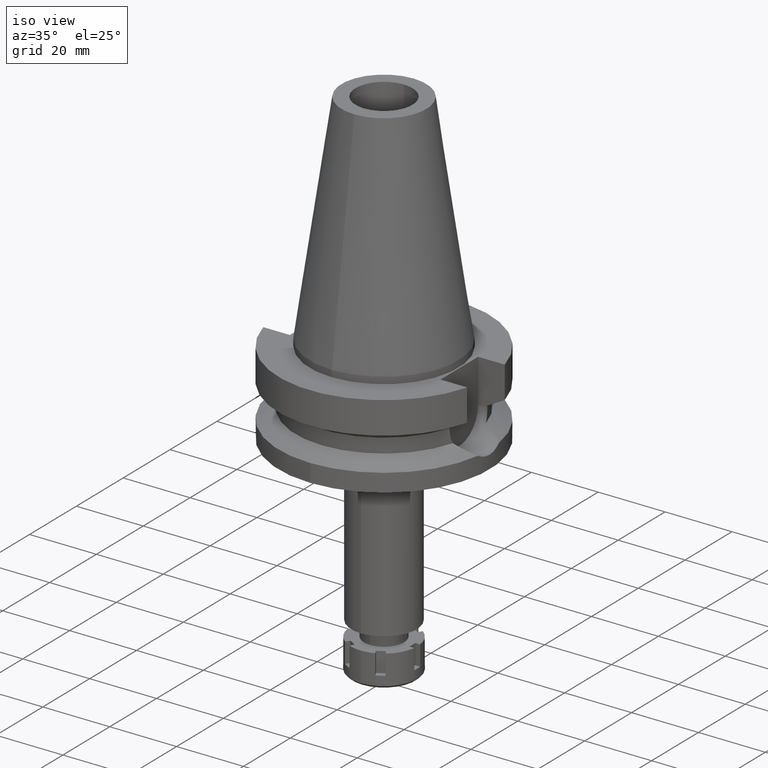
[diagram: clean part render]
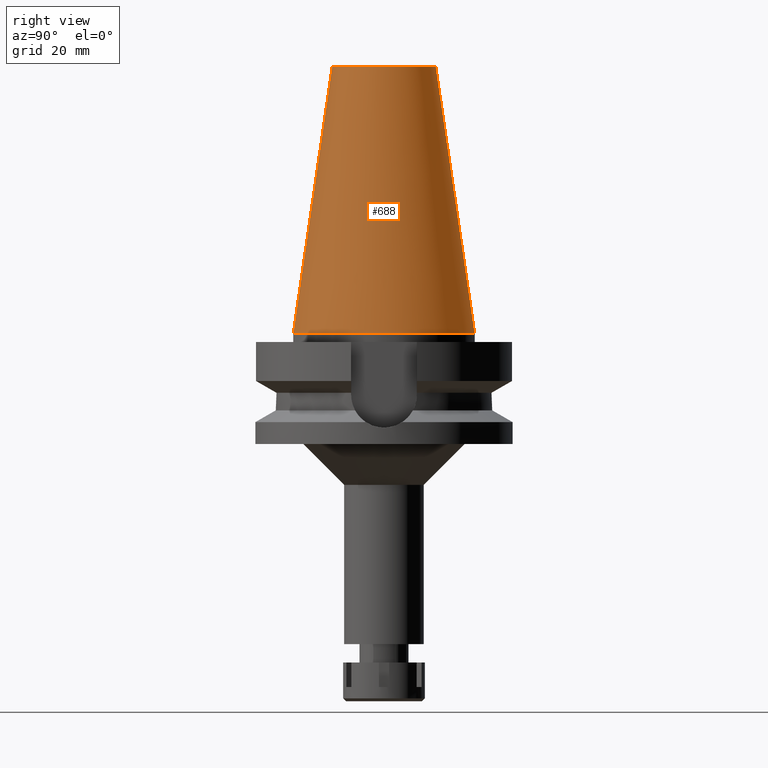
[diagram: tour spotlight — one face highlighted and labeled with its STEP entity id]
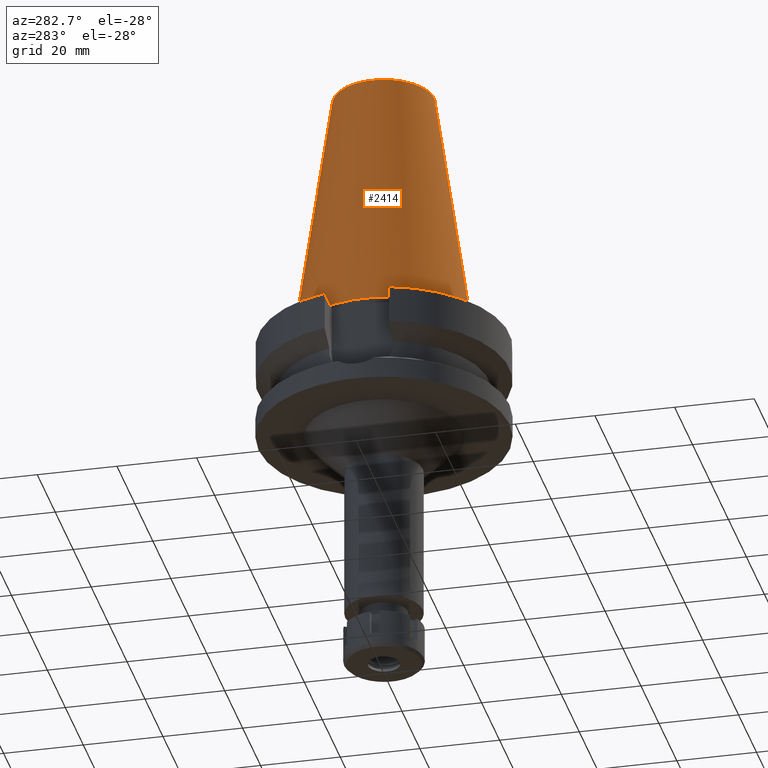
[diagram: tour spotlight — one face highlighted and labeled with its STEP entity id]
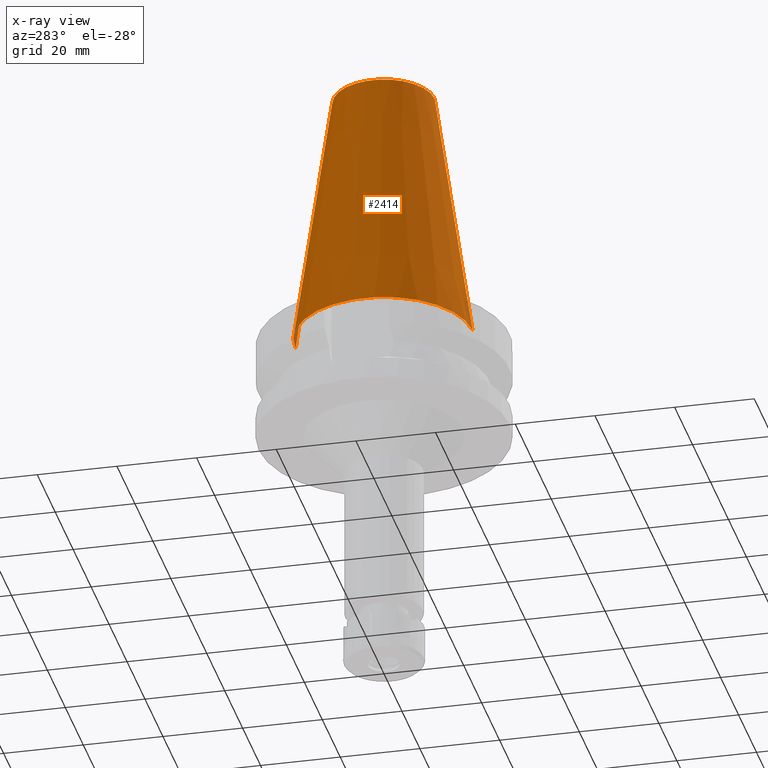
[diagram: x-ray of the same camera — body ghosted, this tour face saturated]
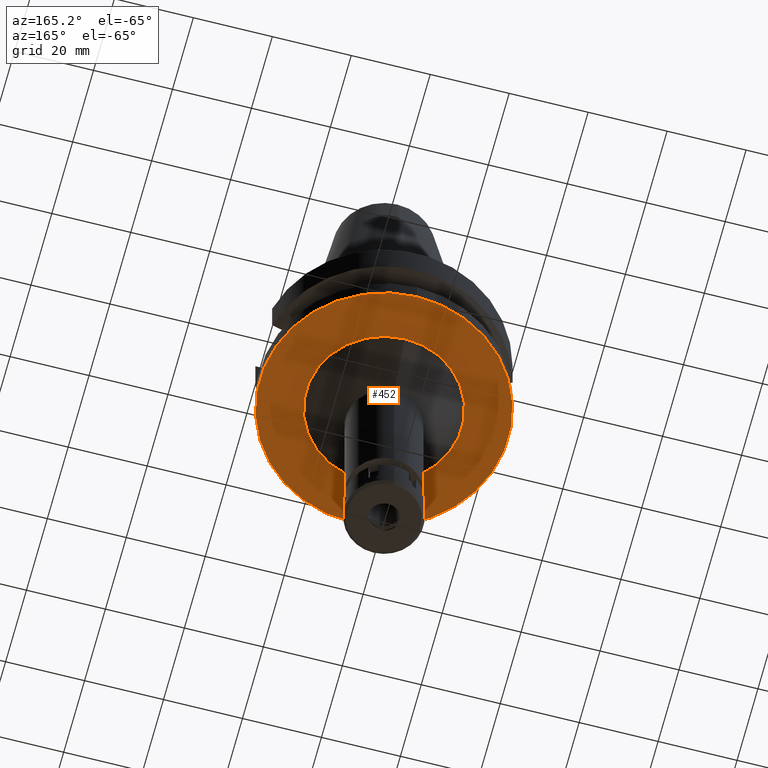
[diagram: tour spotlight — one face highlighted and labeled with its STEP entity id]
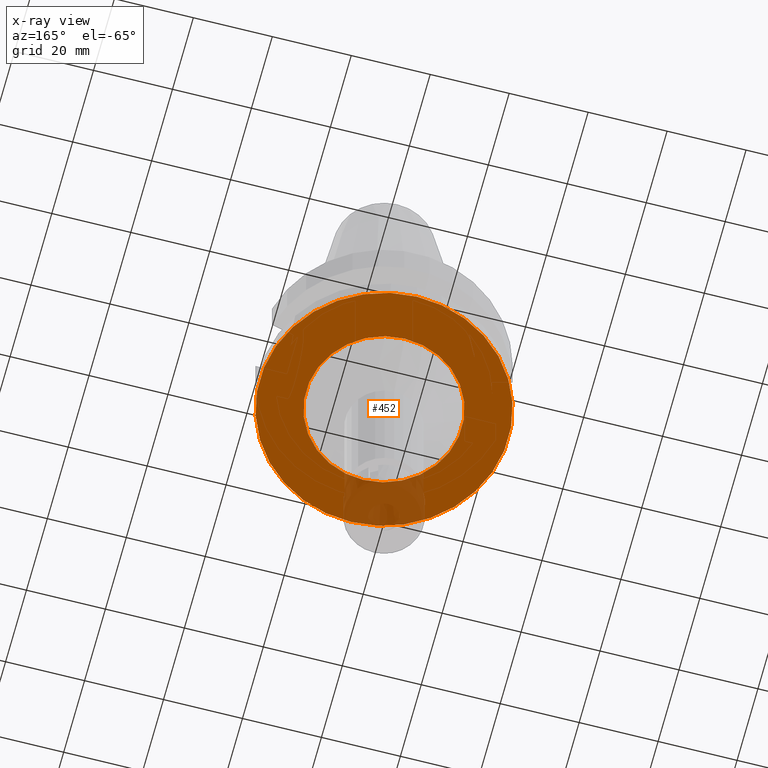
[diagram: x-ray of the same camera — body ghosted, this tour face saturated]
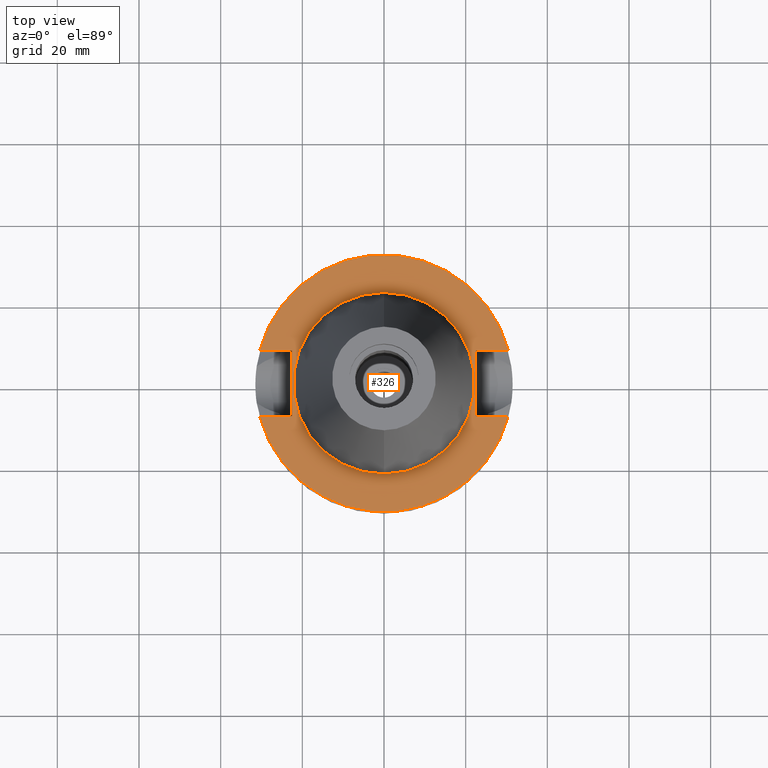
[diagram: tour spotlight — one face highlighted and labeled with its STEP entity id]
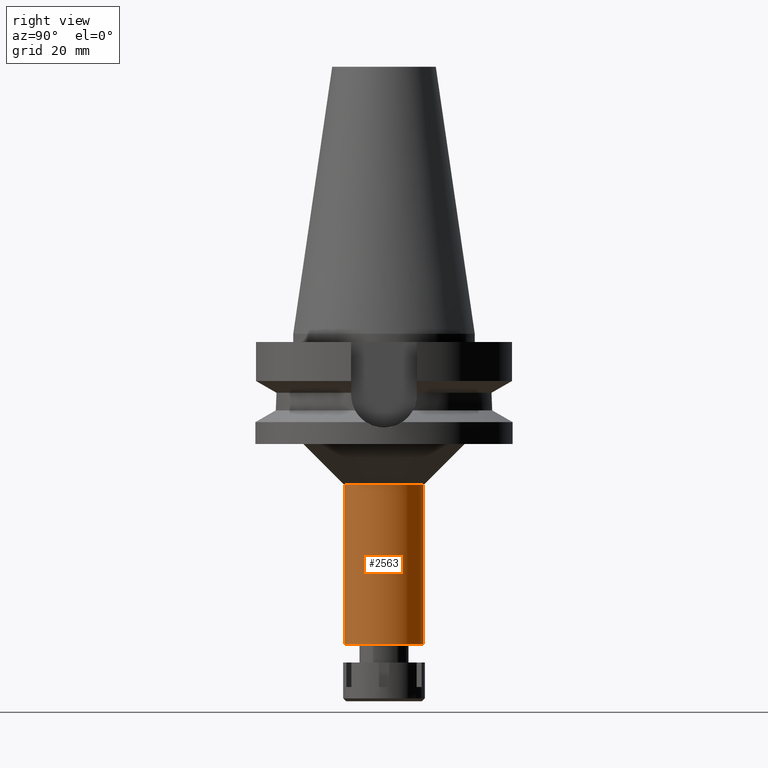
[diagram: tour spotlight — one face highlighted and labeled with its STEP entity id]
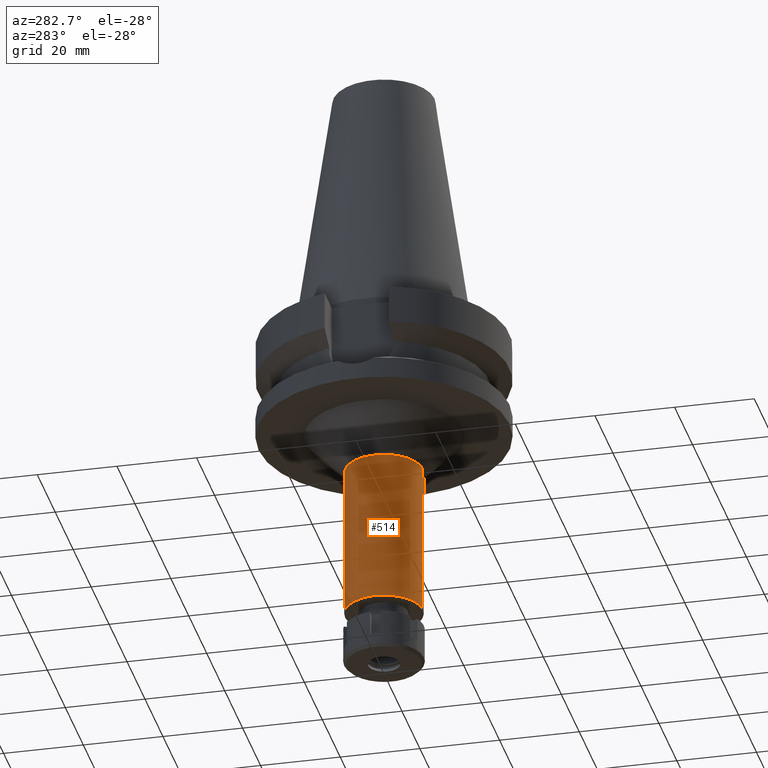
[diagram: tour spotlight — one face highlighted and labeled with its STEP entity id]
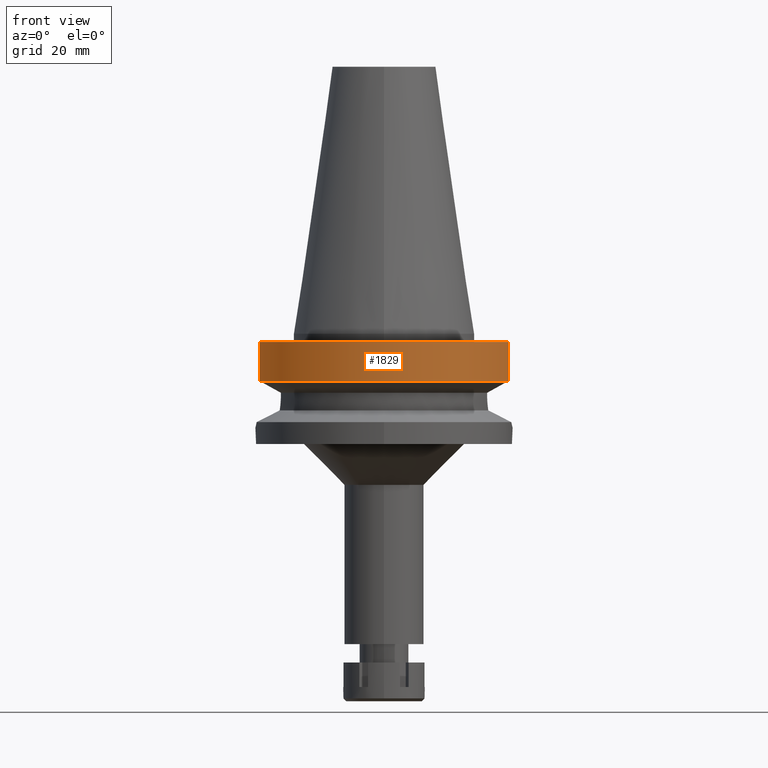
[diagram: tour spotlight — one face highlighted and labeled with its STEP entity id]
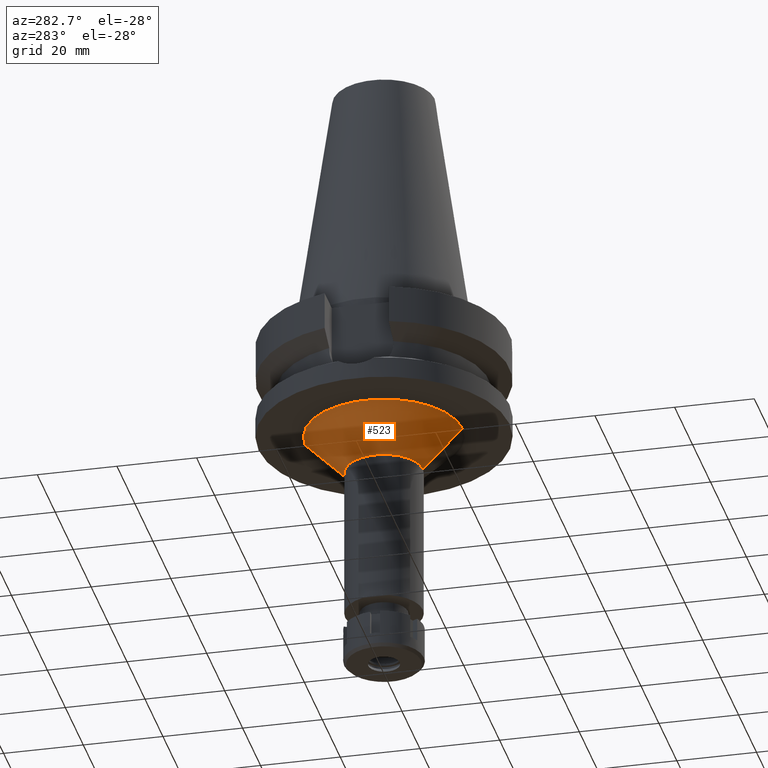
[diagram: tour spotlight — one face highlighted and labeled with its STEP entity id]
A machine part: a face-by-face anatomy tour. The part has 93 B-rep faces; the first image is the clean iso view, then the 8 largest visible faces are spotlighted one at a time (largest first), each with its STEP entity span.

Face 1 — right view, entity #688. In plain terms, the highlighted conical surface has half-angle 8.297 deg.
Definition (entity closure, byte-faithful):
#25 = CARTESIAN_POINT ( 'NONE',  ( 0.0000000000000000000, -22.22500000000000142, 2.842170943039999687E-14 ) ) ;
#68 = EDGE_CURVE ( 'NONE', #3295, #3209, #849, .T. ) ;
#174 = AXIS2_PLACEMENT_3D ( 'NONE', #1125, #2842, #3377 ) ;
#209 = LINE ( 'NONE', #1332, #979 ) ;
#239 = DIRECTION ( 'NONE',  ( 0.0000000000000000000, 1.000000000000000000, 0.0000000000000000000 ) ) ;
#414 = FACE_OUTER_BOUND ( 'NONE', #694, .T. ) ;
#688 = ADVANCED_FACE ( 'NONE', ( #414 ), #2694, .T. ) ;
#694 = EDGE_LOOP ( 'NONE', ( #954, #3004, #1729, #2101 ) ) ;
#723 = CARTESIAN_POINT ( 'NONE',  ( 0.0000000000000000000, 1.625106302469000024E-14, 65.40000000000000568 ) ) ;
#849 = CIRCLE ( 'NONE', #1273, 12.68766899429999917 ) ;
#922 = DIRECTION ( 'NONE',  ( 0.0000000000000000000, 0.0000000000000000000, -1.000000000000000000 ) ) ;
#954 = ORIENTED_EDGE ( 'NONE', *, *, #68, .T. ) ;
#979 = VECTOR ( 'NONE', #1576, 1000.000000000000114 ) ;
#1063 = DIRECTION ( 'NONE',  ( 0.0000000000000000000, -0.1443043893539925626, -0.9895333461855498891 ) ) ;
#1125 = CARTESIAN_POINT ( 'NONE',  ( 0.0000000000000000000, 1.625106302469000024E-14, 2.842170943039999687E-14 ) ) ;
#1273 = AXIS2_PLACEMENT_3D ( 'NONE', #723, #1634, #239 ) ;
#1332 = CARTESIAN_POINT ( 'NONE',  ( 0.0000000000000000000, 12.68766899429999917, 65.40000000000000568 ) ) ;
#1349 = LINE ( 'NONE', #3608, #2335 ) ;
#1366 = EDGE_CURVE ( 'NONE', #3295, #2921, #209, .T. ) ;
#1523 = CARTESIAN_POINT ( 'NONE',  ( 0.0000000000000000000, 12.68766899429999917, 65.40000000000000568 ) ) ;
#1576 = DIRECTION ( 'NONE',  ( 0.0000000000000000000, 0.1443043893539925626, -0.9895333461855498891 ) ) ;
#1634 = DIRECTION ( 'NONE',  ( 0.0000000000000000000, 0.0000000000000000000, -1.000000000000000000 ) ) ;
#1690 = CARTESIAN_POINT ( 'NONE',  ( 0.0000000000000000000, 22.22500000000000142, 7.105427357600999334E-14 ) ) ;
#1729 = ORIENTED_EDGE ( 'NONE', *, *, #2919, .F. ) ;
#1951 = EDGE_CURVE ( 'NONE', #3209, #2524, #1349, .T. ) ;
#2019 = CARTESIAN_POINT ( 'NONE',  ( 0.0000000000000000000, -12.68766899429999917, 65.40000000000000568 ) ) ;
#2053 = DIRECTION ( 'NONE',  ( 0.0000000000000000000, -1.000000000000000000, 0.0000000000000000000 ) ) ;
#2101 = ORIENTED_EDGE ( 'NONE', *, *, #1366, .F. ) ;
#2165 = AXIS2_PLACEMENT_3D ( 'NONE', #2895, #922, #2053 ) ;
#2335 = VECTOR ( 'NONE', #1063, 1000.000000000000114 ) ;
#2524 = VERTEX_POINT ( 'NONE', #25 ) ;
#2694 = CONICAL_SURFACE ( 'NONE', #2165, 17.45633449714999941, 0.1448099680379422438 ) ;
#2842 = DIRECTION ( 'NONE',  ( 0.0000000000000000000, 0.0000000000000000000, -1.000000000000000000 ) ) ;
#2895 = CARTESIAN_POINT ( 'NONE',  ( 0.0000000000000000000, 1.625106302469000024E-14, 32.70000000000000284 ) ) ;
#2919 = EDGE_CURVE ( 'NONE', #2921, #2524, #3305, .T. ) ;
#2921 = VERTEX_POINT ( 'NONE', #1690 ) ;
#3004 = ORIENTED_EDGE ( 'NONE', *, *, #1951, .T. ) ;
#3209 = VERTEX_POINT ( 'NONE', #2019 ) ;
#3295 = VERTEX_POINT ( 'NONE', #1523 ) ;
#3305 = CIRCLE ( 'NONE', #174, 22.22500000000000142 ) ;
#3377 = DIRECTION ( 'NONE',  ( 0.0000000000000000000, 1.000000000000000000, 0.0000000000000000000 ) ) ;
#3608 = CARTESIAN_POINT ( 'NONE',  ( 0.0000000000000000000, -12.68766899429999917, 65.40000000000000568 ) ) ;

Face 2 — auxiliary view, entity #2414. An x-ray twin of the same camera follows (body ghosted, this face saturated) — the face is partly hidden behind the body. In plain terms, the highlighted conical surface has half-angle 8.297 deg.
Definition (entity closure, byte-faithful):
#25 = CARTESIAN_POINT ( 'NONE',  ( 0.0000000000000000000, -22.22500000000000142, 2.842170943039999687E-14 ) ) ;
#100 = DIRECTION ( 'NONE',  ( 0.0000000000000000000, 0.0000000000000000000, -1.000000000000000000 ) ) ;
#191 = DIRECTION ( 'NONE',  ( 0.0000000000000000000, -1.000000000000000000, 0.0000000000000000000 ) ) ;
#209 = LINE ( 'NONE', #1332, #979 ) ;
#274 = ORIENTED_EDGE ( 'NONE', *, *, #1951, .F. ) ;
#567 = AXIS2_PLACEMENT_3D ( 'NONE', #1243, #100, #3215 ) ;
#681 = AXIS2_PLACEMENT_3D ( 'NONE', #1060, #2196, #3056 ) ;
#769 = DIRECTION ( 'NONE',  ( 0.0000000000000000000, 0.0000000000000000000, -1.000000000000000000 ) ) ;
#979 = VECTOR ( 'NONE', #1576, 1000.000000000000114 ) ;
#1060 = CARTESIAN_POINT ( 'NONE',  ( 0.0000000000000000000, 1.625106302469000024E-14, 2.842170943039999687E-14 ) ) ;
#1063 = DIRECTION ( 'NONE',  ( 0.0000000000000000000, -0.1443043893539925626, -0.9895333461855498891 ) ) ;
#1090 = EDGE_CURVE ( 'NONE', #2524, #2921, #3582, .T. ) ;
#1221 = AXIS2_PLACEMENT_3D ( 'NONE', #3317, #769, #191 ) ;
#1238 = EDGE_CURVE ( 'NONE', #3209, #3295, #3638, .T. ) ;
#1243 = CARTESIAN_POINT ( 'NONE',  ( 0.0000000000000000000, 1.625106302469000024E-14, 65.40000000000000568 ) ) ;
#1332 = CARTESIAN_POINT ( 'NONE',  ( 0.0000000000000000000, 12.68766899429999917, 65.40000000000000568 ) ) ;
#1349 = LINE ( 'NONE', #3608, #2335 ) ;
#1366 = EDGE_CURVE ( 'NONE', #3295, #2921, #209, .T. ) ;
#1469 = ORIENTED_EDGE ( 'NONE', *, *, #1366, .T. ) ;
#1523 = CARTESIAN_POINT ( 'NONE',  ( 0.0000000000000000000, 12.68766899429999917, 65.40000000000000568 ) ) ;
#1576 = DIRECTION ( 'NONE',  ( 0.0000000000000000000, 0.1443043893539925626, -0.9895333461855498891 ) ) ;
#1690 = CARTESIAN_POINT ( 'NONE',  ( 0.0000000000000000000, 22.22500000000000142, 7.105427357600999334E-14 ) ) ;
#1951 = EDGE_CURVE ( 'NONE', #3209, #2524, #1349, .T. ) ;
#2019 = CARTESIAN_POINT ( 'NONE',  ( 0.0000000000000000000, -12.68766899429999917, 65.40000000000000568 ) ) ;
#2164 = FACE_OUTER_BOUND ( 'NONE', #3262, .T. ) ;
#2196 = DIRECTION ( 'NONE',  ( 0.0000000000000000000, 0.0000000000000000000, -1.000000000000000000 ) ) ;
#2335 = VECTOR ( 'NONE', #1063, 1000.000000000000114 ) ;
#2339 = CONICAL_SURFACE ( 'NONE', #1221, 17.45633449714999941, 0.1448099680379422438 ) ;
#2357 = ORIENTED_EDGE ( 'NONE', *, *, #1238, .T. ) ;
#2414 = ADVANCED_FACE ( 'NONE', ( #2164 ), #2339, .T. ) ;
#2524 = VERTEX_POINT ( 'NONE', #25 ) ;
#2921 = VERTEX_POINT ( 'NONE', #1690 ) ;
#3056 = DIRECTION ( 'NONE',  ( 0.0000000000000000000, -1.000000000000000000, 0.0000000000000000000 ) ) ;
#3209 = VERTEX_POINT ( 'NONE', #2019 ) ;
#3215 = DIRECTION ( 'NONE',  ( 0.0000000000000000000, -1.000000000000000000, 0.0000000000000000000 ) ) ;
#3262 = EDGE_LOOP ( 'NONE', ( #3460, #274, #2357, #1469 ) ) ;
#3295 = VERTEX_POINT ( 'NONE', #1523 ) ;
#3317 = CARTESIAN_POINT ( 'NONE',  ( 0.0000000000000000000, 1.625106302469000024E-14, 32.70000000000000284 ) ) ;
#3460 = ORIENTED_EDGE ( 'NONE', *, *, #1090, .F. ) ;
#3582 = CIRCLE ( 'NONE', #681, 22.22500000000000142 ) ;
#3608 = CARTESIAN_POINT ( 'NONE',  ( 0.0000000000000000000, -12.68766899429999917, 65.40000000000000568 ) ) ;
#3638 = CIRCLE ( 'NONE', #567, 12.68766899429999917 ) ;

Face 3 — auxiliary view, entity #452. An x-ray twin of the same camera follows (body ghosted, this face saturated) — the face is partly hidden behind the body. In plain terms, the highlighted planar face has unit normal (0, 0, -1).
Definition (entity closure, byte-faithful):
#126 = CARTESIAN_POINT ( 'NONE',  ( 0.0000000000000000000, 0.0000000000000000000, -27.00000000000000000 ) ) ;
#169 = ORIENTED_EDGE ( 'NONE', *, *, #3291, .F. ) ;
#204 = DIRECTION ( 'NONE',  ( 0.0000000000000000000, 0.0000000000000000000, 1.000000000000000000 ) ) ;
#217 = ORIENTED_EDGE ( 'NONE', *, *, #2027, .F. ) ;
#235 = AXIS2_PLACEMENT_3D ( 'NONE', #126, #3509, #1822 ) ;
#306 = VERTEX_POINT ( 'NONE', #3228 ) ;
#450 = AXIS2_PLACEMENT_3D ( 'NONE', #1886, #2150, #1012 ) ;
#452 = ADVANCED_FACE ( 'NONE', ( #1834, #3554 ), #3300, .T. ) ;
#544 = CARTESIAN_POINT ( 'NONE',  ( 0.0000000000000000000, -19.75000000000000000, -27.00000000000000000 ) ) ;
#726 = VERTEX_POINT ( 'NONE', #2112 ) ;
#747 = DIRECTION ( 'NONE',  ( 0.0000000000000000000, 1.000000000000000000, 0.0000000000000000000 ) ) ;
#872 = CIRCLE ( 'NONE', #235, 19.75000000000000000 ) ;
#883 = CARTESIAN_POINT ( 'NONE',  ( 0.0000000000000000000, 0.0000000000000000000, -27.00000000000000000 ) ) ;
#1012 = DIRECTION ( 'NONE',  ( 0.0000000000000000000, -1.000000000000000000, 0.0000000000000000000 ) ) ;
#1119 = DIRECTION ( 'NONE',  ( 0.0000000000000000000, 0.0000000000000000000, -1.000000000000000000 ) ) ;
#1493 = VERTEX_POINT ( 'NONE', #544 ) ;
#1607 = EDGE_CURVE ( 'NONE', #306, #726, #1814, .T. ) ;
#1814 = CIRCLE ( 'NONE', #2221, 31.50000000000000000 ) ;
#1822 = DIRECTION ( 'NONE',  ( 0.0000000000000000000, -1.000000000000000000, 0.0000000000000000000 ) ) ;
#1834 = FACE_OUTER_BOUND ( 'NONE', #2162, .T. ) ;
#1886 = CARTESIAN_POINT ( 'NONE',  ( 0.0000000000000000000, 0.0000000000000000000, -27.00000000000000000 ) ) ;
#2014 = CARTESIAN_POINT ( 'NONE',  ( 0.0000000000000000000, 2.117659245085999800E-14, -27.00000000000000000 ) ) ;
#2027 = EDGE_CURVE ( 'NONE', #3551, #1493, #2706, .T. ) ;
#2048 = AXIS2_PLACEMENT_3D ( 'NONE', #3553, #204, #747 ) ;
#2112 = CARTESIAN_POINT ( 'NONE',  ( 0.0000000000000000000, 31.50000000000000000, -27.00000000000000000 ) ) ;
#2150 = DIRECTION ( 'NONE',  ( 0.0000000000000000000, 0.0000000000000000000, -1.000000000000000000 ) ) ;
#2162 = EDGE_LOOP ( 'NONE', ( #2254, #2559 ) ) ;
#2221 = AXIS2_PLACEMENT_3D ( 'NONE', #2014, #3153, #2871 ) ;
#2254 = ORIENTED_EDGE ( 'NONE', *, *, #2388, .F. ) ;
#2388 = EDGE_CURVE ( 'NONE', #726, #306, #3068, .T. ) ;
#2550 = DIRECTION ( 'NONE',  ( 0.0000000000000000000, 1.000000000000000000, 0.0000000000000000000 ) ) ;
#2558 = EDGE_LOOP ( 'NONE', ( #217, #169 ) ) ;
#2559 = ORIENTED_EDGE ( 'NONE', *, *, #1607, .F. ) ;
#2636 = CARTESIAN_POINT ( 'NONE',  ( 0.0000000000000000000, 19.75000000000000000, -27.00000000000000000 ) ) ;
#2706 = CIRCLE ( 'NONE', #2885, 19.75000000000000000 ) ;
#2871 = DIRECTION ( 'NONE',  ( 0.0000000000000000000, -1.000000000000000000, 0.0000000000000000000 ) ) ;
#2885 = AXIS2_PLACEMENT_3D ( 'NONE', #883, #1119, #2550 ) ;
#3068 = CIRCLE ( 'NONE', #2048, 31.50000000000000000 ) ;
#3153 = DIRECTION ( 'NONE',  ( 0.0000000000000000000, 0.0000000000000000000, 1.000000000000000000 ) ) ;
#3228 = CARTESIAN_POINT ( 'NONE',  ( 0.0000000000000000000, -31.50000000000000000, -27.00000000000000000 ) ) ;
#3291 = EDGE_CURVE ( 'NONE', #1493, #3551, #872, .T. ) ;
#3300 = PLANE ( 'NONE',  #450 ) ;
#3509 = DIRECTION ( 'NONE',  ( 0.0000000000000000000, 0.0000000000000000000, -1.000000000000000000 ) ) ;
#3551 = VERTEX_POINT ( 'NONE', #2636 ) ;
#3553 = CARTESIAN_POINT ( 'NONE',  ( 0.0000000000000000000, 2.117659245085999800E-14, -27.00000000000000000 ) ) ;
#3554 = FACE_BOUND ( 'NONE', #2558, .T. ) ;

Face 4 — top view, entity #326. In plain terms, the highlighted planar face has unit normal (0, 0, -1).
Definition (entity closure, byte-faithful):
#13 = DIRECTION ( 'NONE',  ( 0.0000000000000000000, 0.0000000000000000000, -1.000000000000000000 ) ) ;
#79 = EDGE_CURVE ( 'NONE', #484, #1215, #3547, .T. ) ;
#103 = CIRCLE ( 'NONE', #3117, 31.50000000000000000 ) ;
#148 = VERTEX_POINT ( 'NONE', #3426 ) ;
#275 = CARTESIAN_POINT ( 'NONE',  ( 0.0000000000000000000, 2.117659245085999800E-14, -2.000000000000000000 ) ) ;
#307 = CARTESIAN_POINT ( 'NONE',  ( 30.45402272279000044, 8.050000000000000711, -2.000000000000000000 ) ) ;
#322 = VERTEX_POINT ( 'NONE', #1099 ) ;
#326 = ADVANCED_FACE ( 'NONE', ( #1026, #2234 ), #1663, .F. ) ;
#336 = ORIENTED_EDGE ( 'NONE', *, *, #3614, .F. ) ;
#382 = CARTESIAN_POINT ( 'NONE',  ( 0.0000000000000000000, 2.117659245085999800E-14, -2.000000000000000000 ) ) ;
#426 = ORIENTED_EDGE ( 'NONE', *, *, #1847, .T. ) ;
#451 = ORIENTED_EDGE ( 'NONE', *, *, #1134, .F. ) ;
#457 = EDGE_CURVE ( 'NONE', #1215, #322, #487, .T. ) ;
#484 = VERTEX_POINT ( 'NONE', #2976 ) ;
#485 = ORIENTED_EDGE ( 'NONE', *, *, #79, .F. ) ;
#487 = LINE ( 'NONE', #2722, #2998 ) ;
#561 = AXIS2_PLACEMENT_3D ( 'NONE', #1610, #826, #1626 ) ;
#731 = LINE ( 'NONE', #3269, #1635 ) ;
#745 = EDGE_LOOP ( 'NONE', ( #2850, #2088 ) ) ;
#759 = LINE ( 'NONE', #1892, #1753 ) ;
#826 = DIRECTION ( 'NONE',  ( 0.0000000000000000000, 0.0000000000000000000, -1.000000000000000000 ) ) ;
#848 = DIRECTION ( 'NONE',  ( -1.000000000000000000, 3.550916904668000126E-14, 0.0000000000000000000 ) ) ;
#879 = CARTESIAN_POINT ( 'NONE',  ( 0.0000000000000000000, 2.117659245085999800E-14, -2.000000000000000000 ) ) ;
#890 = DIRECTION ( 'NONE',  ( 0.0000000000000000000, 0.0000000000000000000, 1.000000000000000000 ) ) ;
#905 = ORIENTED_EDGE ( 'NONE', *, *, #457, .F. ) ;
#937 = VECTOR ( 'NONE', #1006, 1000.000000000000000 ) ;
#972 = VECTOR ( 'NONE', #3276, 1000.000000000000000 ) ;
#990 = CARTESIAN_POINT ( 'NONE',  ( 22.50000000000000000, 8.050000000000000711, -2.000000000000000000 ) ) ;
#996 = ORIENTED_EDGE ( 'NONE', *, *, #1301, .F. ) ;
#1006 = DIRECTION ( 'NONE',  ( 0.0000000000000000000, -1.000000000000000000, 0.0000000000000000000 ) ) ;
#1026 = FACE_OUTER_BOUND ( 'NONE', #1168, .T. ) ;
#1099 = CARTESIAN_POINT ( 'NONE',  ( -30.45402272279000044, 8.050000000000000711, -2.000000000000000000 ) ) ;
#1110 = LINE ( 'NONE', #1929, #1343 ) ;
#1134 = EDGE_CURVE ( 'NONE', #322, #1173, #1812, .T. ) ;
#1168 = EDGE_LOOP ( 'NONE', ( #1562, #2569, #996, #336, #426, #451, #905, #485 ) ) ;
#1173 = VERTEX_POINT ( 'NONE', #307 ) ;
#1179 = CARTESIAN_POINT ( 'NONE',  ( 0.0000000000000000000, 2.117659245085999800E-14, -2.000000000000000000 ) ) ;
#1215 = VERTEX_POINT ( 'NONE', #2580 ) ;
#1267 = LINE ( 'NONE', #990, #937 ) ;
#1301 = EDGE_CURVE ( 'NONE', #3451, #148, #759, .T. ) ;
#1323 = VERTEX_POINT ( 'NONE', #3035 ) ;
#1343 = VECTOR ( 'NONE', #848, 1000.000000000000000 ) ;
#1390 = AXIS2_PLACEMENT_3D ( 'NONE', #1179, #1780, #3485 ) ;
#1396 = DIRECTION ( 'NONE',  ( 0.0000000000000000000, -1.000000000000000000, 0.0000000000000000000 ) ) ;
#1400 = VERTEX_POINT ( 'NONE', #2189 ) ;
#1495 = VERTEX_POINT ( 'NONE', #3138 ) ;
#1560 = DIRECTION ( 'NONE',  ( 0.0000000000000000000, 0.0000000000000000000, -1.000000000000000000 ) ) ;
#1562 = ORIENTED_EDGE ( 'NONE', *, *, #2916, .T. ) ;
#1610 = CARTESIAN_POINT ( 'NONE',  ( 0.0000000000000000000, 1.200153863163999924E-14, -2.000000000000000000 ) ) ;
#1623 = EDGE_CURVE ( 'NONE', #2948, #1323, #2272, .T. ) ;
#1626 = DIRECTION ( 'NONE',  ( 0.0000000000000000000, -1.000000000000000000, 0.0000000000000000000 ) ) ;
#1635 = VECTOR ( 'NONE', #1862, 1000.000000000000000 ) ;
#1663 = PLANE ( 'NONE',  #561 ) ;
#1728 = DIRECTION ( 'NONE',  ( 0.0000000000000000000, -1.000000000000000000, 0.0000000000000000000 ) ) ;
#1753 = VECTOR ( 'NONE', #3287, 1000.000000000000000 ) ;
#1780 = DIRECTION ( 'NONE',  ( 0.0000000000000000000, 0.0000000000000000000, 1.000000000000000000 ) ) ;
#1812 = CIRCLE ( 'NONE', #2757, 31.50000000000000000 ) ;
#1847 = EDGE_CURVE ( 'NONE', #1495, #1173, #731, .T. ) ;
#1862 = DIRECTION ( 'NONE',  ( 1.000000000000000000, -3.506251283225999947E-14, 0.0000000000000000000 ) ) ;
#1892 = CARTESIAN_POINT ( 'NONE',  ( 22.50000000000000000, -8.050000000000000711, -2.000000000000000000 ) ) ;
#1929 = CARTESIAN_POINT ( 'NONE',  ( -22.50000000000000000, -8.050000000000000711, -2.000000000000000000 ) ) ;
#1999 = EDGE_CURVE ( 'NONE', #148, #1400, #103, .T. ) ;
#2088 = ORIENTED_EDGE ( 'NONE', *, *, #3142, .F. ) ;
#2140 = CARTESIAN_POINT ( 'NONE',  ( -22.50000000000000000, -8.050000000000000711, -2.000000000000000000 ) ) ;
#2189 = CARTESIAN_POINT ( 'NONE',  ( -30.45402272279000044, -8.050000000000000711, -2.000000000000000000 ) ) ;
#2234 = FACE_BOUND ( 'NONE', #745, .T. ) ;
#2272 = CIRCLE ( 'NONE', #1390, 22.22500000000000142 ) ;
#2569 = ORIENTED_EDGE ( 'NONE', *, *, #1999, .F. ) ;
#2580 = CARTESIAN_POINT ( 'NONE',  ( -22.50000000000000000, 8.050000000000000711, -2.000000000000000000 ) ) ;
#2722 = CARTESIAN_POINT ( 'NONE',  ( -22.50000000000000000, 8.050000000000000711, -2.000000000000000000 ) ) ;
#2757 = AXIS2_PLACEMENT_3D ( 'NONE', #879, #1560, #3274 ) ;
#2828 = CIRCLE ( 'NONE', #3192, 22.22500000000000142 ) ;
#2850 = ORIENTED_EDGE ( 'NONE', *, *, #1623, .F. ) ;
#2916 = EDGE_CURVE ( 'NONE', #484, #1400, #1110, .T. ) ;
#2948 = VERTEX_POINT ( 'NONE', #3363 ) ;
#2976 = CARTESIAN_POINT ( 'NONE',  ( -22.50000000000000000, -8.050000000000000711, -2.000000000000000000 ) ) ;
#2998 = VECTOR ( 'NONE', #3268, 1000.000000000000000 ) ;
#3035 = CARTESIAN_POINT ( 'NONE',  ( 0.0000000000000000000, -22.22500000000000142, -2.000000000000000000 ) ) ;
#3117 = AXIS2_PLACEMENT_3D ( 'NONE', #275, #13, #1396 ) ;
#3138 = CARTESIAN_POINT ( 'NONE',  ( 22.50000000000000000, 8.050000000000000711, -2.000000000000000000 ) ) ;
#3142 = EDGE_CURVE ( 'NONE', #1323, #2948, #2828, .T. ) ;
#3182 = CARTESIAN_POINT ( 'NONE',  ( 22.50000000000000000, -8.050000000000000711, -2.000000000000000000 ) ) ;
#3192 = AXIS2_PLACEMENT_3D ( 'NONE', #382, #890, #1728 ) ;
#3268 = DIRECTION ( 'NONE',  ( -1.000000000000000000, -3.550916904668000126E-14, 0.0000000000000000000 ) ) ;
#3269 = CARTESIAN_POINT ( 'NONE',  ( 22.50000000000000000, 8.050000000000000711, -2.000000000000000000 ) ) ;
#3274 = DIRECTION ( 'NONE',  ( 0.0000000000000000000, 1.000000000000000000, 0.0000000000000000000 ) ) ;
#3276 = DIRECTION ( 'NONE',  ( 0.0000000000000000000, 1.000000000000000000, 0.0000000000000000000 ) ) ;
#3287 = DIRECTION ( 'NONE',  ( 1.000000000000000000, 3.573249715389999860E-14, 0.0000000000000000000 ) ) ;
#3363 = CARTESIAN_POINT ( 'NONE',  ( 0.0000000000000000000, 22.22500000000000142, -2.000000000000000000 ) ) ;
#3426 = CARTESIAN_POINT ( 'NONE',  ( 30.45402272279000044, -8.050000000000000711, -2.000000000000000000 ) ) ;
#3451 = VERTEX_POINT ( 'NONE', #3182 ) ;
#3485 = DIRECTION ( 'NONE',  ( 0.0000000000000000000, 1.000000000000000000, 0.0000000000000000000 ) ) ;
#3547 = LINE ( 'NONE', #2140, #972 ) ;
#3614 = EDGE_CURVE ( 'NONE', #1495, #3451, #1267, .T. ) ;

Face 5 — right view, entity #2563. In plain terms, the highlighted cylindrical surface (partial cylindrical patch) has radius 9.75 mm, axis along (0, 0, -1).
Definition (entity closure, byte-faithful):
#20 = CARTESIAN_POINT ( 'NONE',  ( 0.0000000000000000000, -9.750000000000000000, -37.00000000000000000 ) ) ;
#40 = AXIS2_PLACEMENT_3D ( 'NONE', #2246, #2493, #2566 ) ;
#184 = EDGE_CURVE ( 'NONE', #1360, #3581, #1198, .T. ) ;
#309 = DIRECTION ( 'NONE',  ( 0.0000000000000000000, 0.0000000000000000000, -1.000000000000000000 ) ) ;
#517 = DIRECTION ( 'NONE',  ( 0.0000000000000000000, -1.000000000000000000, 0.0000000000000000000 ) ) ;
#615 = DIRECTION ( 'NONE',  ( 0.0000000000000000000, 0.0000000000000000000, -1.000000000000000000 ) ) ;
#687 = ORIENTED_EDGE ( 'NONE', *, *, #3161, .T. ) ;
#864 = CIRCLE ( 'NONE', #40, 9.750000000000000000 ) ;
#1045 = CIRCLE ( 'NONE', #2178, 9.750000000000000000 ) ;
#1178 = DIRECTION ( 'NONE',  ( 0.0000000000000000000, 0.0000000000000000000, -1.000000000000000000 ) ) ;
#1198 = LINE ( 'NONE', #1742, #1922 ) ;
#1222 = VERTEX_POINT ( 'NONE', #2387 ) ;
#1245 = CARTESIAN_POINT ( 'NONE',  ( 0.0000000000000000000, 0.0000000000000000000, -37.00000000000000000 ) ) ;
#1360 = VERTEX_POINT ( 'NONE', #2760 ) ;
#1450 = ORIENTED_EDGE ( 'NONE', *, *, #2072, .T. ) ;
#1484 = LINE ( 'NONE', #20, #2589 ) ;
#1586 = AXIS2_PLACEMENT_3D ( 'NONE', #1981, #309, #517 ) ;
#1742 = CARTESIAN_POINT ( 'NONE',  ( 0.0000000000000000000, 9.750000000000000000, -37.00000000000000000 ) ) ;
#1922 = VECTOR ( 'NONE', #1178, 1000.000000000000000 ) ;
#1934 = CYLINDRICAL_SURFACE ( 'NONE', #1586, 9.750000000000000000 ) ;
#1981 = CARTESIAN_POINT ( 'NONE',  ( 0.0000000000000000000, 2.117659245085999800E-14, 72.92000000000000171 ) ) ;
#2072 = EDGE_CURVE ( 'NONE', #1222, #3581, #864, .T. ) ;
#2097 = DIRECTION ( 'NONE',  ( 0.0000000000000000000, 1.000000000000000000, 0.0000000000000000000 ) ) ;
#2178 = AXIS2_PLACEMENT_3D ( 'NONE', #1245, #2373, #2097 ) ;
#2246 = CARTESIAN_POINT ( 'NONE',  ( 0.0000000000000000000, 2.117659245085999800E-14, -76.00000000000000000 ) ) ;
#2373 = DIRECTION ( 'NONE',  ( 0.0000000000000000000, 0.0000000000000000000, -1.000000000000000000 ) ) ;
#2374 = ORIENTED_EDGE ( 'NONE', *, *, #184, .F. ) ;
#2387 = CARTESIAN_POINT ( 'NONE',  ( 0.0000000000000000000, -9.750000000000000000, -76.00000000000000000 ) ) ;
#2431 = ORIENTED_EDGE ( 'NONE', *, *, #3306, .T. ) ;
#2493 = DIRECTION ( 'NONE',  ( 0.0000000000000000000, 0.0000000000000000000, 1.000000000000000000 ) ) ;
#2563 = ADVANCED_FACE ( 'NONE', ( #3091 ), #1934, .T. ) ;
#2566 = DIRECTION ( 'NONE',  ( 0.0000000000000000000, -1.000000000000000000, 0.0000000000000000000 ) ) ;
#2581 = CARTESIAN_POINT ( 'NONE',  ( 0.0000000000000000000, 9.750000000000000000, -76.00000000000000000 ) ) ;
#2589 = VECTOR ( 'NONE', #615, 1000.000000000000000 ) ;
#2760 = CARTESIAN_POINT ( 'NONE',  ( 0.0000000000000000000, 9.750000000000000000, -37.00000000000000000 ) ) ;
#2938 = CARTESIAN_POINT ( 'NONE',  ( 0.0000000000000000000, -9.750000000000000000, -37.00000000000000000 ) ) ;
#3091 = FACE_OUTER_BOUND ( 'NONE', #3403, .T. ) ;
#3161 = EDGE_CURVE ( 'NONE', #3223, #1222, #1484, .T. ) ;
#3223 = VERTEX_POINT ( 'NONE', #2938 ) ;
#3306 = EDGE_CURVE ( 'NONE', #1360, #3223, #1045, .T. ) ;
#3403 = EDGE_LOOP ( 'NONE', ( #2431, #687, #1450, #2374 ) ) ;
#3581 = VERTEX_POINT ( 'NONE', #2581 ) ;

Face 6 — auxiliary view, entity #514. In plain terms, the highlighted cylindrical surface (partial cylindrical patch) has radius 9.75 mm, axis along (0, 0, -1).
Definition (entity closure, byte-faithful):
#20 = CARTESIAN_POINT ( 'NONE',  ( 0.0000000000000000000, -9.750000000000000000, -37.00000000000000000 ) ) ;
#36 = DIRECTION ( 'NONE',  ( 0.0000000000000000000, -1.000000000000000000, 0.0000000000000000000 ) ) ;
#184 = EDGE_CURVE ( 'NONE', #1360, #3581, #1198, .T. ) ;
#224 = CYLINDRICAL_SURFACE ( 'NONE', #453, 9.750000000000000000 ) ;
#279 = EDGE_LOOP ( 'NONE', ( #1693, #1091, #3353, #3516 ) ) ;
#453 = AXIS2_PLACEMENT_3D ( 'NONE', #1555, #2682, #2650 ) ;
#503 = FACE_OUTER_BOUND ( 'NONE', #279, .T. ) ;
#514 = ADVANCED_FACE ( 'NONE', ( #503 ), #224, .T. ) ;
#615 = DIRECTION ( 'NONE',  ( 0.0000000000000000000, 0.0000000000000000000, -1.000000000000000000 ) ) ;
#915 = DIRECTION ( 'NONE',  ( 0.0000000000000000000, 1.000000000000000000, 0.0000000000000000000 ) ) ;
#1039 = AXIS2_PLACEMENT_3D ( 'NONE', #1791, #2910, #915 ) ;
#1091 = ORIENTED_EDGE ( 'NONE', *, *, #3161, .F. ) ;
#1178 = DIRECTION ( 'NONE',  ( 0.0000000000000000000, 0.0000000000000000000, -1.000000000000000000 ) ) ;
#1198 = LINE ( 'NONE', #1742, #1922 ) ;
#1222 = VERTEX_POINT ( 'NONE', #2387 ) ;
#1360 = VERTEX_POINT ( 'NONE', #2760 ) ;
#1484 = LINE ( 'NONE', #20, #2589 ) ;
#1555 = CARTESIAN_POINT ( 'NONE',  ( 0.0000000000000000000, 2.117659245085999800E-14, 72.92000000000000171 ) ) ;
#1574 = EDGE_CURVE ( 'NONE', #3223, #1360, #3244, .T. ) ;
#1693 = ORIENTED_EDGE ( 'NONE', *, *, #2148, .T. ) ;
#1742 = CARTESIAN_POINT ( 'NONE',  ( 0.0000000000000000000, 9.750000000000000000, -37.00000000000000000 ) ) ;
#1791 = CARTESIAN_POINT ( 'NONE',  ( 0.0000000000000000000, 2.117659245085999800E-14, -76.00000000000000000 ) ) ;
#1922 = VECTOR ( 'NONE', #1178, 1000.000000000000000 ) ;
#2148 = EDGE_CURVE ( 'NONE', #3581, #1222, #3010, .T. ) ;
#2387 = CARTESIAN_POINT ( 'NONE',  ( 0.0000000000000000000, -9.750000000000000000, -76.00000000000000000 ) ) ;
#2572 = DIRECTION ( 'NONE',  ( 0.0000000000000000000, 0.0000000000000000000, -1.000000000000000000 ) ) ;
#2581 = CARTESIAN_POINT ( 'NONE',  ( 0.0000000000000000000, 9.750000000000000000, -76.00000000000000000 ) ) ;
#2589 = VECTOR ( 'NONE', #615, 1000.000000000000000 ) ;
#2650 = DIRECTION ( 'NONE',  ( 0.0000000000000000000, -1.000000000000000000, 0.0000000000000000000 ) ) ;
#2682 = DIRECTION ( 'NONE',  ( 0.0000000000000000000, 0.0000000000000000000, -1.000000000000000000 ) ) ;
#2760 = CARTESIAN_POINT ( 'NONE',  ( 0.0000000000000000000, 9.750000000000000000, -37.00000000000000000 ) ) ;
#2910 = DIRECTION ( 'NONE',  ( 0.0000000000000000000, 0.0000000000000000000, 1.000000000000000000 ) ) ;
#2938 = CARTESIAN_POINT ( 'NONE',  ( 0.0000000000000000000, -9.750000000000000000, -37.00000000000000000 ) ) ;
#3010 = CIRCLE ( 'NONE', #1039, 9.750000000000000000 ) ;
#3095 = CARTESIAN_POINT ( 'NONE',  ( 0.0000000000000000000, 0.0000000000000000000, -37.00000000000000000 ) ) ;
#3161 = EDGE_CURVE ( 'NONE', #3223, #1222, #1484, .T. ) ;
#3223 = VERTEX_POINT ( 'NONE', #2938 ) ;
#3244 = CIRCLE ( 'NONE', #3299, 9.750000000000000000 ) ;
#3299 = AXIS2_PLACEMENT_3D ( 'NONE', #3095, #2572, #36 ) ;
#3353 = ORIENTED_EDGE ( 'NONE', *, *, #1574, .T. ) ;
#3516 = ORIENTED_EDGE ( 'NONE', *, *, #184, .T. ) ;
#3581 = VERTEX_POINT ( 'NONE', #2581 ) ;

Face 7 — front view, entity #1829. In plain terms, the highlighted cylindrical surface (partial cylindrical patch) has radius 31.5 mm, axis along (0, 0, -1).
Definition (entity closure, byte-faithful):
#13 = DIRECTION ( 'NONE',  ( 0.0000000000000000000, 0.0000000000000000000, -1.000000000000000000 ) ) ;
#103 = CIRCLE ( 'NONE', #3117, 31.50000000000000000 ) ;
#148 = VERTEX_POINT ( 'NONE', #3426 ) ;
#275 = CARTESIAN_POINT ( 'NONE',  ( 0.0000000000000000000, 2.117659245085999800E-14, -2.000000000000000000 ) ) ;
#624 = CARTESIAN_POINT ( 'NONE',  ( 0.0000000000000000000, 1.065333950388000029E-14, -11.56550565266999975 ) ) ;
#632 = CIRCLE ( 'NONE', #2517, 31.50000000000000000 ) ;
#656 = EDGE_CURVE ( 'NONE', #148, #3123, #3251, .T. ) ;
#690 = ORIENTED_EDGE ( 'NONE', *, *, #1999, .T. ) ;
#734 = ORIENTED_EDGE ( 'NONE', *, *, #2264, .T. ) ;
#805 = VECTOR ( 'NONE', #828, 999.9999999999998863 ) ;
#828 = DIRECTION ( 'NONE',  ( 1.997452052689988660E-08, -7.556603676652958736E-08, 0.9999999999999970024 ) ) ;
#895 = CARTESIAN_POINT ( 'NONE',  ( -30.45402291385000026, -8.049999277172000589, -11.56551216302999840 ) ) ;
#919 = AXIS2_PLACEMENT_3D ( 'NONE', #2167, #2443, #3061 ) ;
#975 = CARTESIAN_POINT ( 'NONE',  ( 30.45402272279000044, -8.050000000000000711, -2.000000000000000000 ) ) ;
#1396 = DIRECTION ( 'NONE',  ( 0.0000000000000000000, -1.000000000000000000, 0.0000000000000000000 ) ) ;
#1400 = VERTEX_POINT ( 'NONE', #2189 ) ;
#1611 = CYLINDRICAL_SURFACE ( 'NONE', #919, 31.50000000000000000 ) ;
#1627 = FACE_OUTER_BOUND ( 'NONE', #2844, .T. ) ;
#1755 = DIRECTION ( 'NONE',  ( 0.0000000000000000000, 0.0000000000000000000, 1.000000000000000000 ) ) ;
#1793 = DIRECTION ( 'NONE',  ( -1.145830160286999441E-07, -4.334793792646997664E-07, -0.9999999999998995248 ) ) ;
#1829 = ADVANCED_FACE ( 'NONE', ( #1627 ), #1611, .T. ) ;
#1999 = EDGE_CURVE ( 'NONE', #148, #1400, #103, .T. ) ;
#2017 = EDGE_CURVE ( 'NONE', #2677, #1400, #3092, .T. ) ;
#2129 = ORIENTED_EDGE ( 'NONE', *, *, #2017, .F. ) ;
#2132 = ORIENTED_EDGE ( 'NONE', *, *, #656, .F. ) ;
#2167 = CARTESIAN_POINT ( 'NONE',  ( 0.0000000000000000000, 2.117659245085999800E-14, 72.92000000000000171 ) ) ;
#2189 = CARTESIAN_POINT ( 'NONE',  ( -30.45402272279000044, -8.050000000000000711, -2.000000000000000000 ) ) ;
#2264 = EDGE_CURVE ( 'NONE', #2677, #3123, #632, .T. ) ;
#2443 = DIRECTION ( 'NONE',  ( 0.0000000000000000000, 0.0000000000000000000, -1.000000000000000000 ) ) ;
#2517 = AXIS2_PLACEMENT_3D ( 'NONE', #624, #1755, #2604 ) ;
#2604 = DIRECTION ( 'NONE',  ( 0.0000000000000000000, -1.000000000000000000, 0.0000000000000000000 ) ) ;
#2677 = VERTEX_POINT ( 'NONE', #895 ) ;
#2844 = EDGE_LOOP ( 'NONE', ( #2129, #734, #2132, #690 ) ) ;
#3061 = DIRECTION ( 'NONE',  ( 0.0000000000000000000, -1.000000000000000000, 0.0000000000000000000 ) ) ;
#3092 = LINE ( 'NONE', #3372, #805 ) ;
#3117 = AXIS2_PLACEMENT_3D ( 'NONE', #275, #13, #1396 ) ;
#3123 = VERTEX_POINT ( 'NONE', #3469 ) ;
#3251 = LINE ( 'NONE', #975, #3294 ) ;
#3294 = VECTOR ( 'NONE', #1793, 1000.000000000000114 ) ;
#3372 = CARTESIAN_POINT ( 'NONE',  ( -30.45402291385000026, -8.049999277172000589, -11.56551216302999840 ) ) ;
#3426 = CARTESIAN_POINT ( 'NONE',  ( 30.45402272279000044, -8.050000000000000711, -2.000000000000000000 ) ) ;
#3469 = CARTESIAN_POINT ( 'NONE',  ( 30.45402272279000044, -8.049999999999000622, -11.56550565266999975 ) ) ;

Face 8 — auxiliary view, entity #523. In plain terms, the highlighted conical surface has half-angle 45 deg.
Definition (entity closure, byte-faithful):
#36 = DIRECTION ( 'NONE',  ( 0.0000000000000000000, -1.000000000000000000, 0.0000000000000000000 ) ) ;
#126 = CARTESIAN_POINT ( 'NONE',  ( 0.0000000000000000000, 0.0000000000000000000, -27.00000000000000000 ) ) ;
#144 = LINE ( 'NONE', #1278, #165 ) ;
#165 = VECTOR ( 'NONE', #1445, 1000.000000000000114 ) ;
#235 = AXIS2_PLACEMENT_3D ( 'NONE', #126, #3509, #1822 ) ;
#523 = ADVANCED_FACE ( 'NONE', ( #2915 ), #1973, .T. ) ;
#544 = CARTESIAN_POINT ( 'NONE',  ( 0.0000000000000000000, -19.75000000000000000, -27.00000000000000000 ) ) ;
#571 = VECTOR ( 'NONE', #1954, 1000.000000000000114 ) ;
#831 = CARTESIAN_POINT ( 'NONE',  ( 0.0000000000000000000, 19.75000000000000000, -27.00000000000000000 ) ) ;
#872 = CIRCLE ( 'NONE', #235, 19.75000000000000000 ) ;
#1209 = EDGE_CURVE ( 'NONE', #1493, #3223, #144, .T. ) ;
#1278 = CARTESIAN_POINT ( 'NONE',  ( 0.0000000000000000000, -19.75000000000000000, -27.00000000000000000 ) ) ;
#1360 = VERTEX_POINT ( 'NONE', #2760 ) ;
#1445 = DIRECTION ( 'NONE',  ( 0.0000000000000000000, 0.7071067811865474617, -0.7071067811865474617 ) ) ;
#1464 = CARTESIAN_POINT ( 'NONE',  ( 0.0000000000000000000, 0.0000000000000000000, -32.00000000000000000 ) ) ;
#1493 = VERTEX_POINT ( 'NONE', #544 ) ;
#1552 = EDGE_CURVE ( 'NONE', #3551, #1360, #2287, .T. ) ;
#1574 = EDGE_CURVE ( 'NONE', #3223, #1360, #3244, .T. ) ;
#1822 = DIRECTION ( 'NONE',  ( 0.0000000000000000000, -1.000000000000000000, 0.0000000000000000000 ) ) ;
#1954 = DIRECTION ( 'NONE',  ( 0.0000000000000000000, -0.7071067811865474617, -0.7071067811865474617 ) ) ;
#1973 = CONICAL_SURFACE ( 'NONE', #3108, 14.75000000000000000, 0.7853981633972997312 ) ;
#2204 = ORIENTED_EDGE ( 'NONE', *, *, #1574, .F. ) ;
#2287 = LINE ( 'NONE', #831, #571 ) ;
#2572 = DIRECTION ( 'NONE',  ( 0.0000000000000000000, 0.0000000000000000000, -1.000000000000000000 ) ) ;
#2579 = EDGE_LOOP ( 'NONE', ( #2204, #3404, #3564, #2674 ) ) ;
#2636 = CARTESIAN_POINT ( 'NONE',  ( 0.0000000000000000000, 19.75000000000000000, -27.00000000000000000 ) ) ;
#2674 = ORIENTED_EDGE ( 'NONE', *, *, #1552, .T. ) ;
#2760 = CARTESIAN_POINT ( 'NONE',  ( 0.0000000000000000000, 9.750000000000000000, -37.00000000000000000 ) ) ;
#2900 = DIRECTION ( 'NONE',  ( 0.0000000000000000000, 1.000000000000000000, 0.0000000000000000000 ) ) ;
#2915 = FACE_OUTER_BOUND ( 'NONE', #2579, .T. ) ;
#2934 = DIRECTION ( 'NONE',  ( 0.0000000000000000000, 0.0000000000000000000, 1.000000000000000000 ) ) ;
#2938 = CARTESIAN_POINT ( 'NONE',  ( 0.0000000000000000000, -9.750000000000000000, -37.00000000000000000 ) ) ;
#3095 = CARTESIAN_POINT ( 'NONE',  ( 0.0000000000000000000, 0.0000000000000000000, -37.00000000000000000 ) ) ;
#3108 = AXIS2_PLACEMENT_3D ( 'NONE', #1464, #2934, #2900 ) ;
#3223 = VERTEX_POINT ( 'NONE', #2938 ) ;
#3244 = CIRCLE ( 'NONE', #3299, 9.750000000000000000 ) ;
#3291 = EDGE_CURVE ( 'NONE', #1493, #3551, #872, .T. ) ;
#3299 = AXIS2_PLACEMENT_3D ( 'NONE', #3095, #2572, #36 ) ;
#3404 = ORIENTED_EDGE ( 'NONE', *, *, #1209, .F. ) ;
#3509 = DIRECTION ( 'NONE',  ( 0.0000000000000000000, 0.0000000000000000000, -1.000000000000000000 ) ) ;
#3551 = VERTEX_POINT ( 'NONE', #2636 ) ;
#3564 = ORIENTED_EDGE ( 'NONE', *, *, #3291, .T. ) ;